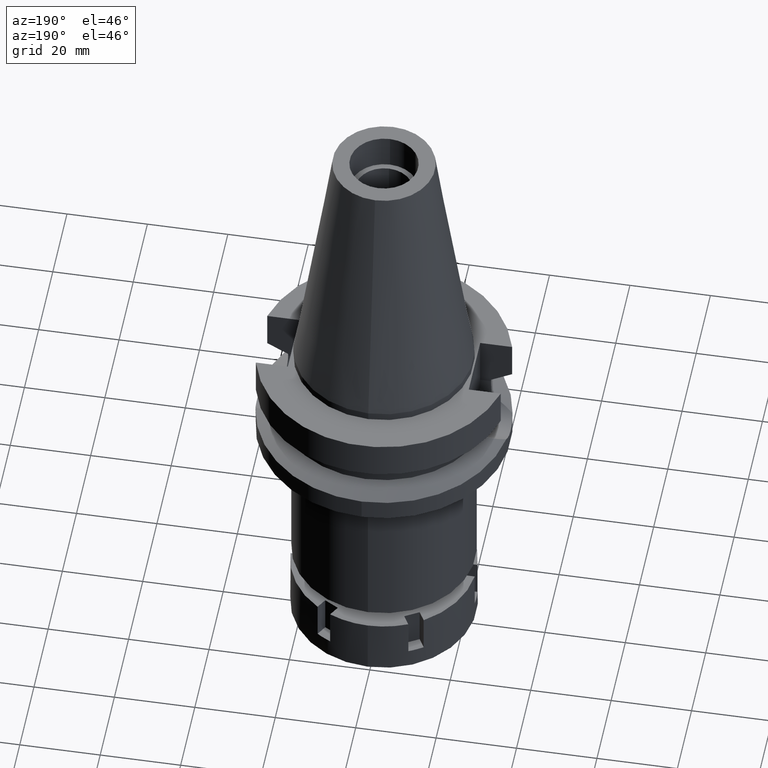
[diagram: clean part render]
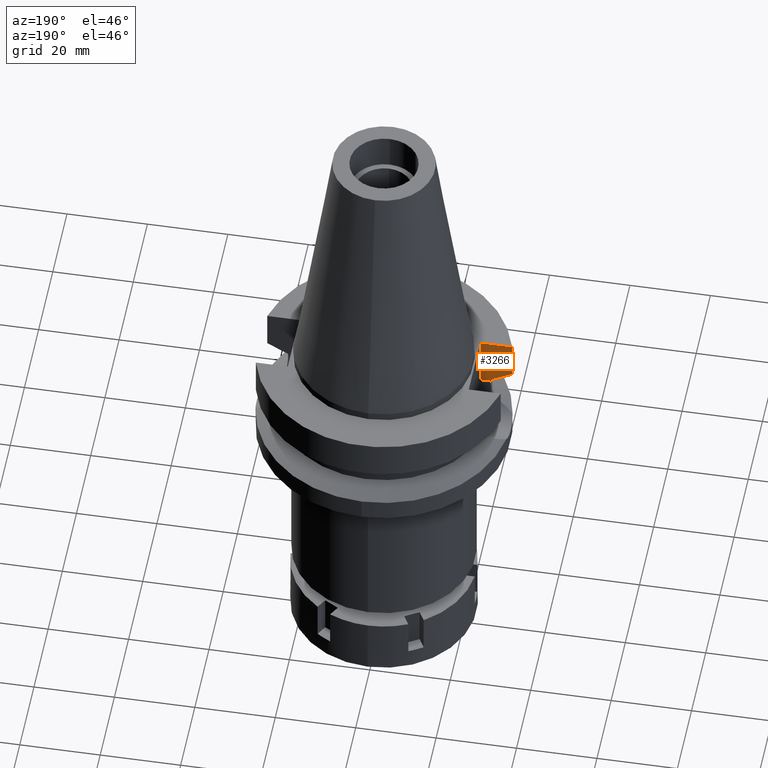
[diagram: same view with one face highlighted and labeled with its STEP entity id]
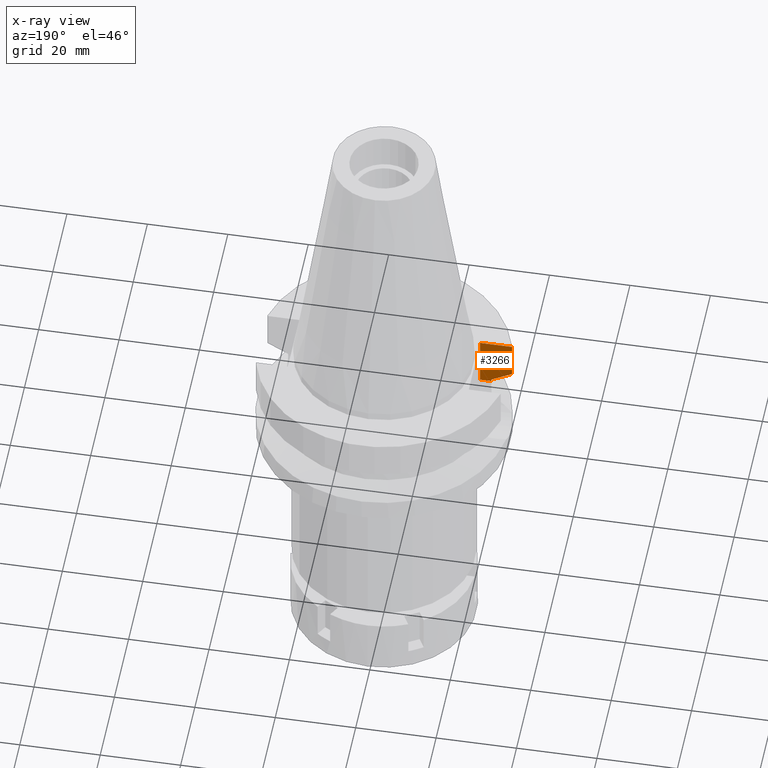
[diagram: x-ray of the same camera — body ghosted, the highlighted face saturated]
A machine part, auxiliary view. The second image highlights one B-rep face of the part: STEP entity #3266.
The next image is the same camera in x-ray: the body ghosted, the highlighted face saturated — about 0% of this face is hidden behind the body in this view.
In plain terms, the highlighted planar face has unit normal (0, -1, 0).
Its self-contained STEP definition (entity closure, byte-faithful):
#33 = VERTEX_POINT ( 'NONE', #2276 ) ;
#168 = VECTOR ( 'NONE', #2159, 1000.000000000000000 ) ;
#192 = CARTESIAN_POINT ( 'NONE',  ( -25.24772413243999836, -8.049995411938999368, -14.45229205738999845 ) ) ;
#311 = CARTESIAN_POINT ( 'NONE',  ( -22.50000000000000000, -8.050000000000000711, -2.000000000000000000 ) ) ;
#387 = CARTESIAN_POINT ( 'NONE',  ( -30.45402272279000044, -8.050000000000000711, -2.000000000000000000 ) ) ;
#527 = DIRECTION ( 'NONE',  ( -2.939192534022975746E-06, 9.218380696526922230E-06, 0.9999999999531912209 ) ) ;
#556 = CARTESIAN_POINT ( 'NONE',  ( -22.50000000000000000, -8.050000000000000711, -14.94999999999999929 ) ) ;
#623 = DIRECTION ( 'NONE',  ( 1.998794099685988783E-08, -7.561680866180955252E-08, 0.9999999999999968914 ) ) ;
#870 = VERTEX_POINT ( 'NONE', #2867 ) ;
#937 = EDGE_LOOP ( 'NONE', ( #2841, #2503, #3235, #1579, #2834, #1368 ) ) ;
#965 = VECTOR ( 'NONE', #2999, 1000.000000000000000 ) ;
#1125 = CARTESIAN_POINT ( 'NONE',  ( -22.50000000000000000, -8.050000000000000711, -14.94999999999999929 ) ) ;
#1191 = LINE ( 'NONE', #3073, #2601 ) ;
#1360 = VERTEX_POINT ( 'NONE', #556 ) ;
#1368 = ORIENTED_EDGE ( 'NONE', *, *, #2629, .T. ) ;
#1369 = EDGE_CURVE ( 'NONE', #2222, #2882, #1399, .T. ) ;
#1379 = CARTESIAN_POINT ( 'NONE',  ( -22.50000000000000000, -8.050000000000000711, -2.000000000000000000 ) ) ;
#1380 = AXIS2_PLACEMENT_3D ( 'NONE', #1125, #3022, #2482 ) ;
#1399 = LINE ( 'NONE', #3313, #965 ) ;
#1421 = B_SPLINE_CURVE_WITH_KNOTS ( 'NONE', 3,
 ( #2335, #1574, #2938, #192 ),
 .UNSPECIFIED., .F., .F.,
 ( 4, 4 ),
 ( 0.0000000000000000000, 1.000000000000000000 ),
 .UNSPECIFIED. ) ;
#1460 = EDGE_CURVE ( 'NONE', #2222, #1360, #1903, .T. ) ;
#1574 = CARTESIAN_POINT ( 'NONE',  ( -28.57292324736876310, -8.049998554312644217, -12.61549607974548515 ) ) ;
#1579 = ORIENTED_EDGE ( 'NONE', *, *, #1460, .T. ) ;
#1903 = LINE ( 'NONE', #1379, #168 ) ;
#1922 = EDGE_CURVE ( 'NONE', #33, #2882, #1191, .T. ) ;
#1926 = FACE_OUTER_BOUND ( 'NONE', #937, .T. ) ;
#1991 = EDGE_CURVE ( 'NONE', #33, #870, #1421, .T. ) ;
#2002 = CARTESIAN_POINT ( 'NONE',  ( -22.50000000000000000, -8.050000000000000711, -14.94999999999999929 ) ) ;
#2159 = DIRECTION ( 'NONE',  ( 0.0000000000000000000, 0.0000000000000000000, -1.000000000000000000 ) ) ;
#2222 = VERTEX_POINT ( 'NONE', #311 ) ;
#2276 = CARTESIAN_POINT ( 'NONE',  ( -30.45402291398000116, -8.049999276686000016, -11.56551216739999965 ) ) ;
#2335 = CARTESIAN_POINT ( 'NONE',  ( -30.45402291398000116, -8.049999276686000016, -11.56551216739999965 ) ) ;
#2395 = LINE ( 'NONE', #2432, #2470 ) ;
#2432 = CARTESIAN_POINT ( 'NONE',  ( -25.24772266958000344, -8.050000000000000711, -14.94999999999999929 ) ) ;
#2470 = VECTOR ( 'NONE', #527, 1000.000000000000227 ) ;
#2482 = DIRECTION ( 'NONE',  ( 0.0000000000000000000, 0.0000000000000000000, -1.000000000000000000 ) ) ;
#2503 = ORIENTED_EDGE ( 'NONE', *, *, #1922, .T. ) ;
#2520 = LINE ( 'NONE', #2002, #3500 ) ;
#2601 = VECTOR ( 'NONE', #623, 1000.000000000000000 ) ;
#2629 = EDGE_CURVE ( 'NONE', #2911, #870, #2395, .T. ) ;
#2735 = EDGE_CURVE ( 'NONE', #1360, #2911, #2520, .T. ) ;
#2780 = CARTESIAN_POINT ( 'NONE',  ( -25.24772266958000344, -8.050000000000000711, -14.94999999999999929 ) ) ;
#2834 = ORIENTED_EDGE ( 'NONE', *, *, #2735, .T. ) ;
#2841 = ORIENTED_EDGE ( 'NONE', *, *, #1991, .F. ) ;
#2867 = CARTESIAN_POINT ( 'NONE',  ( -25.24772413243999836, -8.049995411938999368, -14.45229205738999845 ) ) ;
#2882 = VERTEX_POINT ( 'NONE', #387 ) ;
#2911 = VERTEX_POINT ( 'NONE', #2780 ) ;
#2938 = CARTESIAN_POINT ( 'NONE',  ( -26.83754611517465705, -8.049990813718032712, -13.57774890706494908 ) ) ;
#2999 = DIRECTION ( 'NONE',  ( -1.000000000000000000, 3.550916904668000126E-14, 0.0000000000000000000 ) ) ;
#3022 = DIRECTION ( 'NONE',  ( 0.0000000000000000000, -1.000000000000000000, 0.0000000000000000000 ) ) ;
#3038 = DIRECTION ( 'NONE',  ( -1.000000000000000000, 1.616208268639000174E-14, -1.034373291929000154E-14 ) ) ;
#3073 = CARTESIAN_POINT ( 'NONE',  ( -30.45402291398000116, -8.049999276686000016, -11.56551216739999965 ) ) ;
#3235 = ORIENTED_EDGE ( 'NONE', *, *, #1369, .F. ) ;
#3266 = ADVANCED_FACE ( 'NONE', ( #1926 ), #3332, .F. ) ;
#3313 = CARTESIAN_POINT ( 'NONE',  ( -22.50000000000000000, -8.050000000000000711, -2.000000000000000000 ) ) ;
#3332 = PLANE ( 'NONE',  #1380 ) ;
#3500 = VECTOR ( 'NONE', #3038, 1000.000000000000000 ) ;